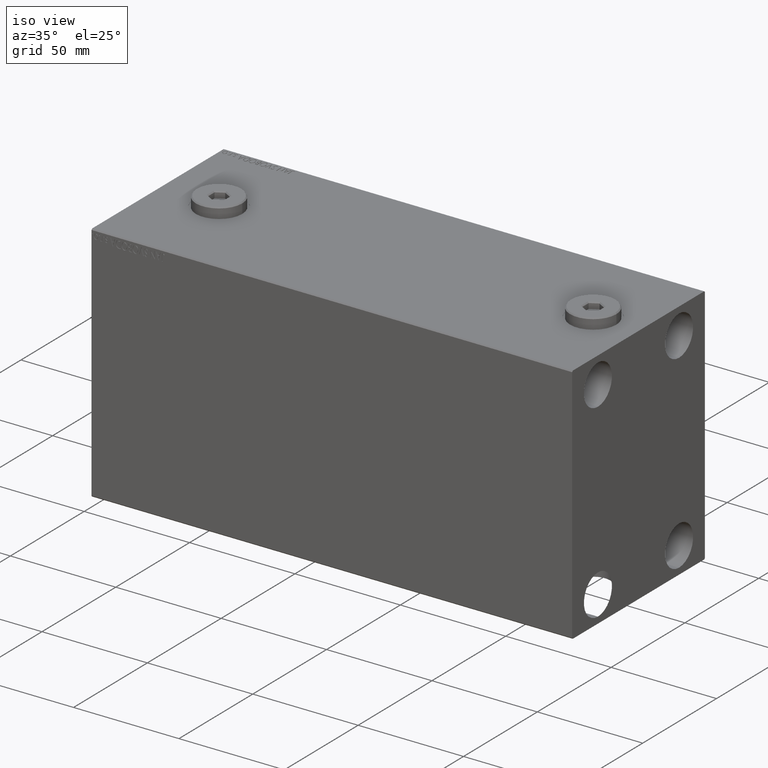
[diagram: clean part render]
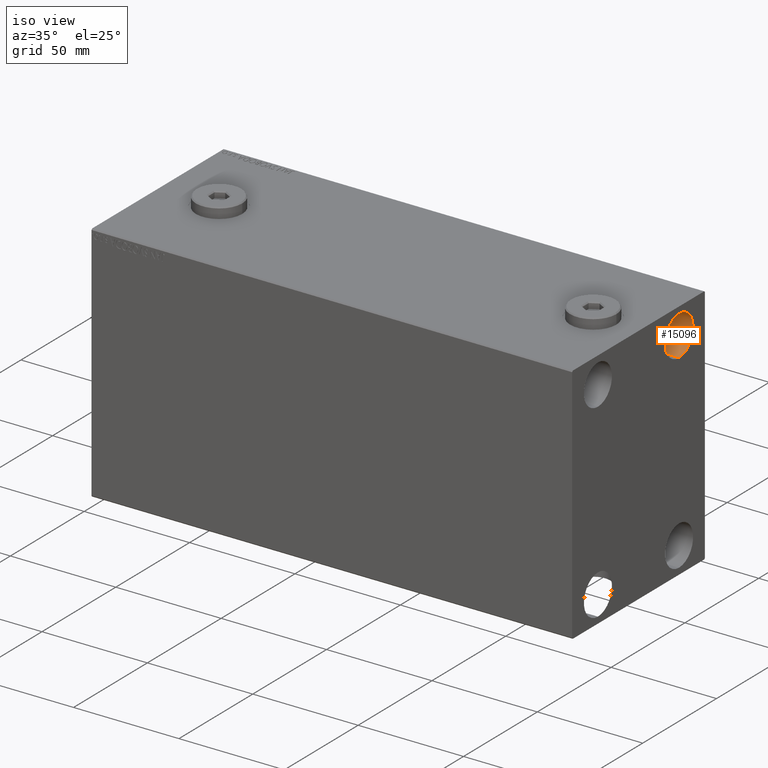
[diagram: same view with one face highlighted and labeled with its STEP entity id]
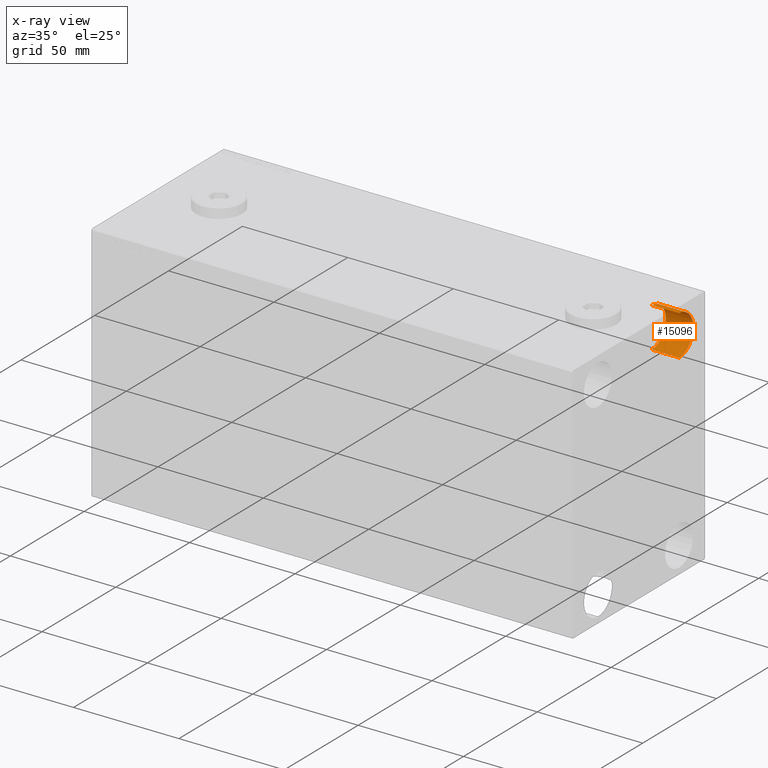
[diagram: x-ray of the same camera — body ghosted, the highlighted face saturated]
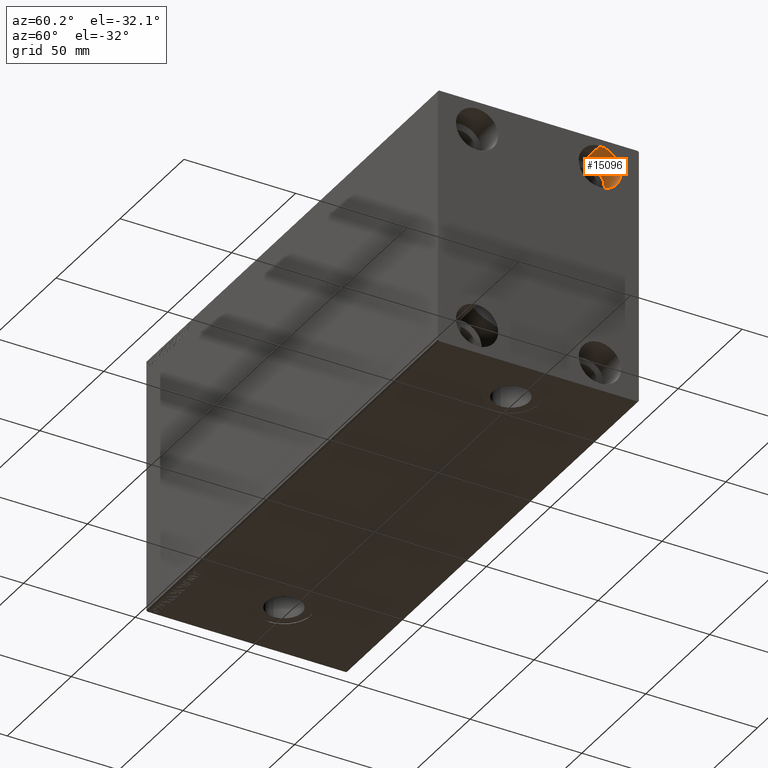
[diagram: same view with one face highlighted and labeled with its STEP entity id]
A machine part, iso view. The second image highlights one B-rep face of the part: STEP entity #15096.
The next image is the same camera in x-ray: the body ghosted, the highlighted face saturated — about 0% of this face is hidden behind the body in this view.
A second angle (auxiliary view) of the same face is appended — the face is thin or edge-on in the first view.
In plain terms, the highlighted cylindrical surface (edge-blend (fillet) strip) has radius 9.5 mm, axis along (1, 0, 0).
Its self-contained STEP definition (entity closure, byte-faithful):
#764 = CARTESIAN_POINT ( 'NONE',  ( 215.0000000000000000, 27.50000000000001066, 45.00000000000000711 ) ) ;
#1806 = DIRECTION ( 'NONE',  ( 0.000000000000000000, 0.000000000000000000, 1.000000000000000000 ) ) ;
#2688 = DIRECTION ( 'NONE',  ( 1.000000000000000000, -0.000000000000000000, -0.000000000000000000 ) ) ;
#3552 = FACE_OUTER_BOUND ( 'NONE', #24007, .T. ) ;
#3737 = AXIS2_PLACEMENT_3D ( 'NONE', #764, #36040, #4652 ) ;
#4652 = DIRECTION ( 'NONE',  ( 0.000000000000000000, 0.000000000000000000, 1.000000000000000000 ) ) ;
#4778 = LINE ( 'NONE', #16896, #28197 ) ;
#8570 = VECTOR ( 'NONE', #39244, 1000.000000000000000 ) ;
#10358 = EDGE_CURVE ( 'NONE', #35960, #10639, #11517, .T. ) ;
#10639 = VERTEX_POINT ( 'NONE', #29097 ) ;
#10860 = CARTESIAN_POINT ( 'NONE',  ( 215.0000000000000000, 27.50000000000001066, 35.50000000000000711 ) ) ;
#11517 = LINE ( 'NONE', #25491, #8570 ) ;
#15096 = ADVANCED_FACE ( 'NONE', ( #3552 ), #31495, .F. ) ;
#15865 = ORIENTED_EDGE ( 'NONE', *, *, #28899, .F. ) ;
#16896 = CARTESIAN_POINT ( 'NONE',  ( 215.0000000000000000, 27.50000000000001066, 54.50000000000000711 ) ) ;
#17481 = AXIS2_PLACEMENT_3D ( 'NONE', #21179, #21628, #35165 ) ;
#17629 = CIRCLE ( 'NONE', #3737, 9.500000000000001776 ) ;
#20010 = AXIS2_PLACEMENT_3D ( 'NONE', #28829, #25638, #1806 ) ;
#21171 = VERTEX_POINT ( 'NONE', #29349 ) ;
#21179 = CARTESIAN_POINT ( 'NONE',  ( 215.0000000000000000, 27.50000000000001066, 45.00000000000000711 ) ) ;
#21471 = CIRCLE ( 'NONE', #20010, 9.500000000000001776 ) ;
#21628 = DIRECTION ( 'NONE',  ( 1.000000000000000000, -0.000000000000000000, -0.000000000000000000 ) ) ;
#21996 = ORIENTED_EDGE ( 'NONE', *, *, #25721, .T. ) ;
#23128 = ORIENTED_EDGE ( 'NONE', *, *, #33758, .F. ) ;
#24007 = EDGE_LOOP ( 'NONE', ( #23128, #21996, #27487, #15865 ) ) ;
#25491 = CARTESIAN_POINT ( 'NONE',  ( 215.0000000000000000, 27.50000000000001066, 35.50000000000000711 ) ) ;
#25638 = DIRECTION ( 'NONE',  ( -1.000000000000000000, -0.000000000000000000, -0.000000000000000000 ) ) ;
#25721 = EDGE_CURVE ( 'NONE', #41341, #35960, #17629, .T. ) ;
#27487 = ORIENTED_EDGE ( 'NONE', *, *, #10358, .T. ) ;
#28197 = VECTOR ( 'NONE', #2688, 1000.000000000000000 ) ;
#28829 = CARTESIAN_POINT ( 'NONE',  ( 228.0000000000000000, 27.50000000000001066, 45.00000000000000711 ) ) ;
#28899 = EDGE_CURVE ( 'NONE', #21171, #10639, #21471, .T. ) ;
#29097 = CARTESIAN_POINT ( 'NONE',  ( 228.0000000000000000, 27.50000000000001066, 35.50000000000000711 ) ) ;
#29349 = CARTESIAN_POINT ( 'NONE',  ( 228.0000000000000000, 27.50000000000001066, 54.50000000000000711 ) ) ;
#31495 = CYLINDRICAL_SURFACE ( 'NONE', #17481, 9.500000000000001776 ) ;
#33758 = EDGE_CURVE ( 'NONE', #41341, #21171, #4778, .T. ) ;
#35165 = DIRECTION ( 'NONE',  ( 0.000000000000000000, 0.000000000000000000, -1.000000000000000000 ) ) ;
#35960 = VERTEX_POINT ( 'NONE', #10860 ) ;
#36040 = DIRECTION ( 'NONE',  ( -1.000000000000000000, -0.000000000000000000, -0.000000000000000000 ) ) ;
#39244 = DIRECTION ( 'NONE',  ( 1.000000000000000000, -0.000000000000000000, -0.000000000000000000 ) ) ;
#41341 = VERTEX_POINT ( 'NONE', #42998 ) ;
#42998 = CARTESIAN_POINT ( 'NONE',  ( 215.0000000000000000, 27.50000000000001066, 54.50000000000000711 ) ) ;